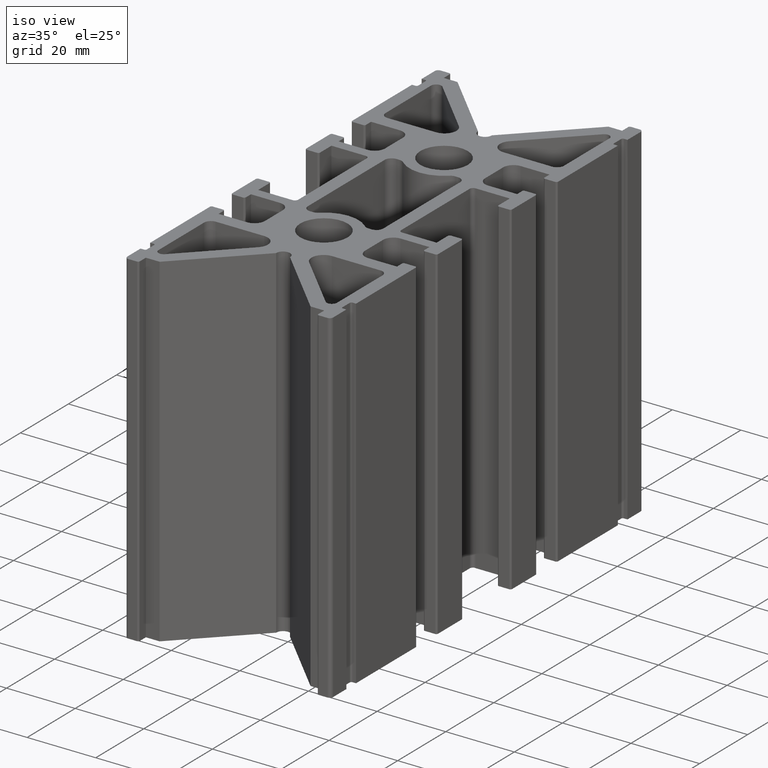
[diagram: clean part render]
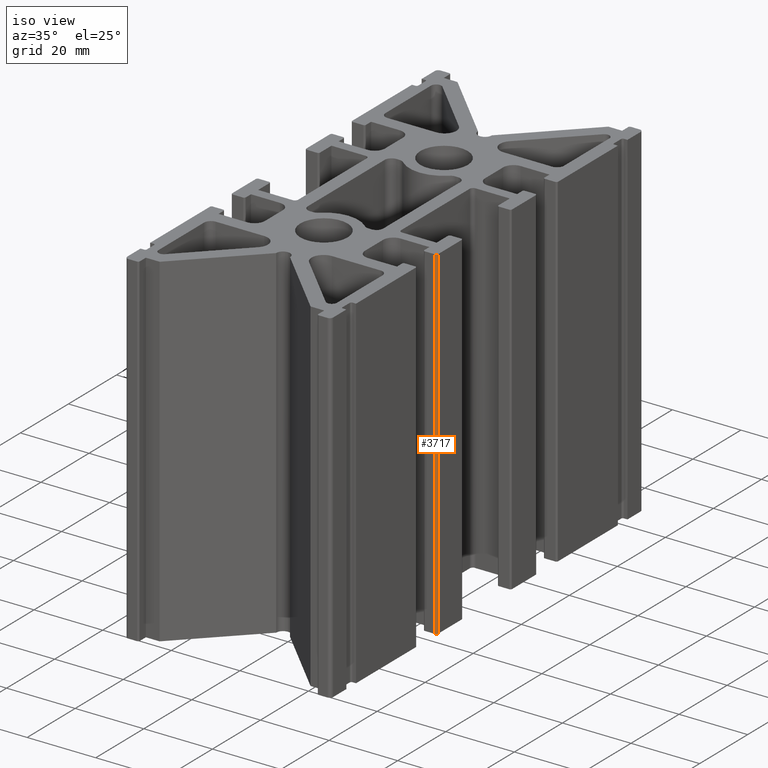
[diagram: same view with one face highlighted and labeled with its STEP entity id]
A machine part, iso view. The second image highlights one B-rep face of the part: STEP entity #3717.
In plain terms, the highlighted cylindrical surface (edge-blend (fillet) strip) has radius 0.5 mm, axis along (0, 0, 1).
Its self-contained STEP definition (entity closure, byte-faithful):
#245=FACE_OUTER_BOUND('',#440,.T.);
#440=EDGE_LOOP('',(#3027,#3028,#3029,#3030));
#600=CIRCLE('',#3936,0.500000000000005);
#656=CIRCLE('',#4058,0.500000000000005);
#958=LINE('',#6067,#1356);
#959=LINE('',#6071,#1357);
#1356=VECTOR('',#4915,10.);
#1357=VECTOR('',#4920,10.);
#1633=VERTEX_POINT('',#5649);
#1634=VERTEX_POINT('',#5651);
#1776=VERTEX_POINT('',#6065);
#1777=VERTEX_POINT('',#6069);
#2047=EDGE_CURVE('',#1633,#1634,#600,.T.);
#2255=EDGE_CURVE('',#1633,#1776,#958,.T.);
#2256=EDGE_CURVE('',#1777,#1776,#656,.T.);
#2257=EDGE_CURVE('',#1634,#1777,#959,.T.);
#3027=ORIENTED_EDGE('',*,*,#2255,.T.);
#3028=ORIENTED_EDGE('',*,*,#2256,.F.);
#3029=ORIENTED_EDGE('',*,*,#2257,.F.);
#3030=ORIENTED_EDGE('',*,*,#2047,.F.);
#3578=CYLINDRICAL_SURFACE('',#4057,0.500000000000005);
#3717=ADVANCED_FACE('',(#245),#3578,.T.);
#3936=AXIS2_PLACEMENT_3D('',#5652,#4521,#4522);
#4057=AXIS2_PLACEMENT_3D('',#6068,#4916,#4917);
#4058=AXIS2_PLACEMENT_3D('',#6070,#4918,#4919);
#4521=DIRECTION('center_axis',(0.,0.,-1.));
#4522=DIRECTION('ref_axis',(0.,-1.,0.));
#4915=DIRECTION('',(0.,0.,1.));
#4916=DIRECTION('center_axis',(0.,0.,1.));
#4917=DIRECTION('ref_axis',(0.,-1.,0.));
#4918=DIRECTION('center_axis',(0.,0.,1.));
#4919=DIRECTION('ref_axis',(0.,-1.,0.));
#4920=DIRECTION('',(0.,0.,1.));
#5649=CARTESIAN_POINT('',(29.9999999999963,-20.3499999999998,-50.));
#5651=CARTESIAN_POINT('',(29.4999999999963,-20.8499999999998,-50.));
#5652=CARTESIAN_POINT('Origin',(29.4999999999963,-20.3499999999998,-50.));
#6065=CARTESIAN_POINT('',(29.9999999999963,-20.3499999999998,50.));
#6067=CARTESIAN_POINT('',(29.9999999999963,-20.3499999999998,0.));
#6068=CARTESIAN_POINT('Origin',(29.4999999999963,-20.3499999999998,0.));
#6069=CARTESIAN_POINT('',(29.4999999999963,-20.8499999999998,50.));
#6070=CARTESIAN_POINT('Origin',(29.4999999999963,-20.3499999999998,50.));
#6071=CARTESIAN_POINT('',(29.4999999999963,-20.8499999999998,0.));